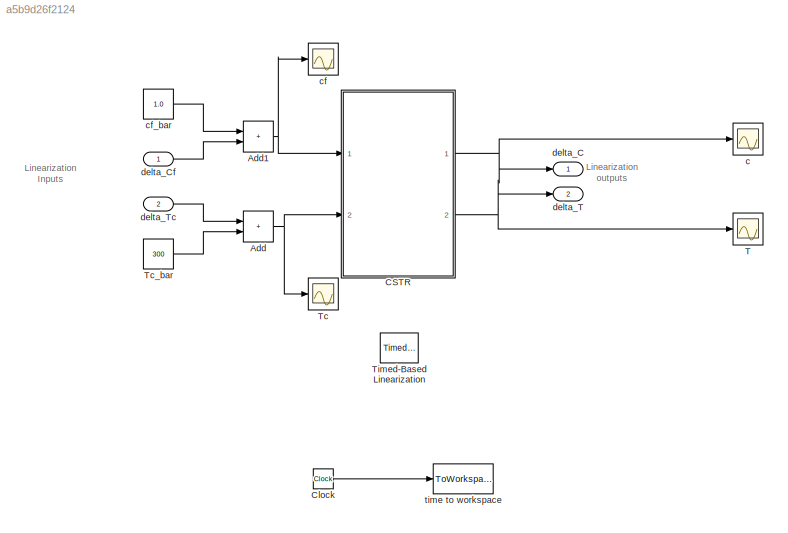
MODEL slx_a5b9d26f2124
KIND model
CONFIG AbsTol = 1e-7
CONFIG EnableMultiTasking = on
CONFIG FixedStep = auto
CONFIG MaxStep = auto
CONFIG MinStep = auto
CONFIG RelTol = 1e-7
CONFIG SampleTimeConstraint = Unconstrained
CONFIG SolverName = ode15s
CONFIG StartTime = 0.0
CONFIG StopTime = 20
BLOCK [Sum] Add
  IconShape = rectangular
  Ports = [2, 1]
BLOCK [Sum] Add1
  IconShape = rectangular
  Ports = [2, 1]
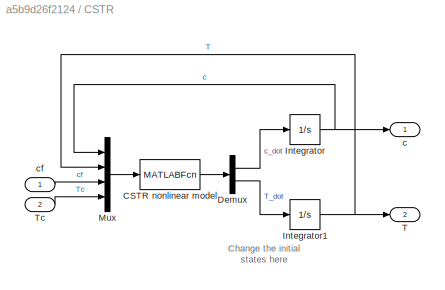
BLOCK [SubSystem] CSTR
  AttributesFormatString = %<Description>
  Ports = [2, 2]
  RequestExecContextInheritance = off
BLOCK [MATLABFcn] CSTR/CSTR nonlinear model
  MATLABFcn = cstrfun(u, q, V, ko, ER, Tf, DH, r, cp, UA)
  OutputDimensions = 2
  Ports = [1, 1]
BLOCK [Demux] CSTR/Demux
  DisplayOption = none
  Outputs = 2
  Ports = [1, 2]
BLOCK [Integrator] CSTR/Integrator
  InitialCondition = c_bar
  Ports = [1, 1]
BLOCK [Integrator] CSTR/Integrator1
  InitialCondition = T_bar
  Ports = [1, 1]
BLOCK [Mux] CSTR/Mux
  DisplayOption = bar
  Ports = [4, 1]
BLOCK [Outport] CSTR/T
  Port = 2
BLOCK [Inport] CSTR/Tc
  Port = 2
BLOCK [Outport] CSTR/c
BLOCK [Inport] CSTR/cf
  NameLocation = top
BLOCK [Clock] Clock
BLOCK [Scope] T
  Floating = off
  NumInputPorts = 1
  Ports = [1]
  ScopeSpecificationString = Simulink.scopes.TimeScopeBlockCfg('CurrentConfiguration', extmgr.ConfigurationSet(extmgr.Configuration('Core','General UI',true),extmgr.Configuration('Core','Source UI',true),extmgr.Configuration('Sources','WiredSimulink',true,'DataLoggingLimitDataPoints',true,'DataLoggingSaveFormat','StructureWithTime','DataLoggingDecimation','1','DataLoggingDecimateData',true,'DataLoggingVariableName','ScopeData...<+2891ch>
BLOCK [Scope] Tc
  Floating = off
  NumInputPorts = 1
  Ports = [1]
  ScopeSpecificationString = Simulink.scopes.TimeScopeBlockCfg('CurrentConfiguration', extmgr.ConfigurationSet(extmgr.Configuration('Core','General UI',true),extmgr.Configuration('Core','Source UI',true),extmgr.Configuration('Sources','WiredSimulink',true,'DataLoggingLimitDataPoints',true,'DataLoggingSaveFormat','StructureWithTime','DataLoggingDecimation','1','DataLoggingDecimateData',true),extmgr.Configuration('Visuals','Tim...<+2871ch>
BLOCK [Constant] Tc_bar
  Value = 300
BLOCK [Reference] Timed-Based Linearization  REF=simulink/Model-Wide
Utilities/Timed-Based
Linearization
  Ports = []
  SourceBlock = simulink/Model-Wide\nUtilities/Timed-Based\nLinearization
  SourceProductBaseCode = SL
  SourceType = Timed Linearization
BLOCK [Scope] c
  Floating = off
  NumInputPorts = 1
  Ports = [1]
  ScopeSpecificationString = Simulink.scopes.TimeScopeBlockCfg('CurrentConfiguration', extmgr.ConfigurationSet(extmgr.Configuration('Core','General UI',true),extmgr.Configuration('Core','Source UI',true),extmgr.Configuration('Sources','WiredSimulink',true,'DataLoggingLimitDataPoints',true,'DataLoggingSaveFormat','StructureWithTime','DataLoggingDecimation','1','DataLoggingDecimateData',true,'DataLoggingVariableName','ScopeData...<+2875ch>
BLOCK [Scope] cf
  Floating = off
  NumInputPorts = 1
  Ports = [1]
  ScopeSpecificationString = Simulink.scopes.TimeScopeBlockCfg('CurrentConfiguration', extmgr.ConfigurationSet(extmgr.Configuration('Core','General UI',true),extmgr.Configuration('Core','Source UI',true),extmgr.Configuration('Sources','WiredSimulink',true,'DataLoggingLimitDataPoints',true,'DataLoggingSaveFormat','StructureWithTime','DataLoggingDecimation','1','DataLoggingDecimateData',true,'DataLoggingVariableName','ScopeData...<+2702ch>
BLOCK [Constant] cf_bar
  Value = 1.0
BLOCK [Outport] delta_C
  NameLocation = top
BLOCK [Inport] delta_Cf
BLOCK [Outport] delta_T
  Port = 2
BLOCK [Inport] delta_Tc
  Port = 2
BLOCK [ToWorkspace] time to workspace
  MaxDataPoints = inf
  Ports = [1]
  SampleTime = -1
  VariableName = ol_time
ANNOTATION (root): Linearization Inputs
ANNOTATION (root): Linearization outputs
ANNOTATION CSTR: Change the initial states here
NET Add1:1 -> CSTR:1, cf:1
NET Add:1 -> CSTR:2, Tc:1
LINE CSTR/CSTR nonlinear model:1 -> CSTR/Demux:1
LINE CSTR/Demux:1 -> CSTR/Integrator:1
LINE CSTR/Demux:2 -> CSTR/Integrator1:1
NET CSTR/Integrator1:1 -> CSTR/Mux:2, CSTR/T:1
NET CSTR/Integrator:1 -> CSTR/Mux:1, CSTR/c:1
LINE CSTR/Mux:1 -> CSTR/CSTR nonlinear model:1
LINE CSTR/Tc:1 -> CSTR/Mux:4
LINE CSTR/cf:1 -> CSTR/Mux:3
NET CSTR:1 -> c:1, delta_C:1
NET CSTR:2 -> T:1, delta_T:1
LINE Clock:1 -> time to workspace:1
LINE Tc_bar:1 -> Add:2
LINE cf_bar:1 -> Add1:1
LINE delta_Cf:1 -> Add1:2
LINE delta_Tc:1 -> Add:1
note: NET lines group one-source signal fan-out (src -> all destinations, sorted); 1:1 wires keep LINE
